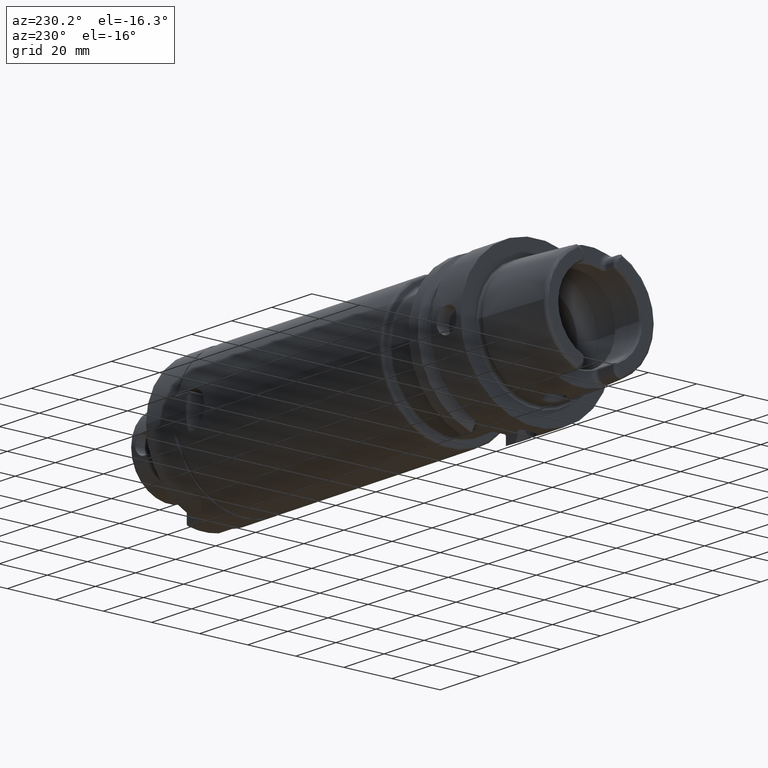
[diagram: clean part render]
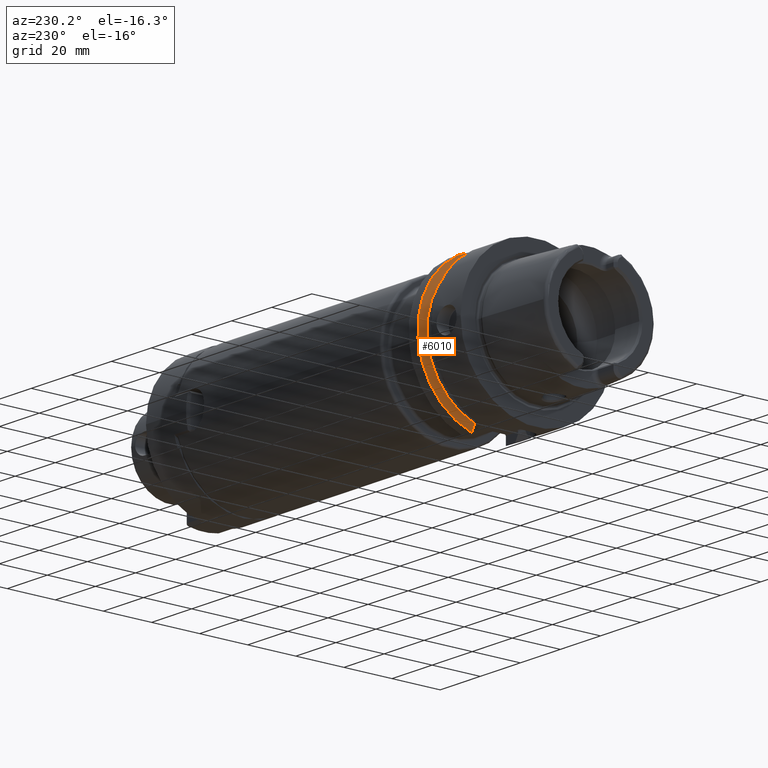
[diagram: same view with one face highlighted and labeled with its STEP entity id]
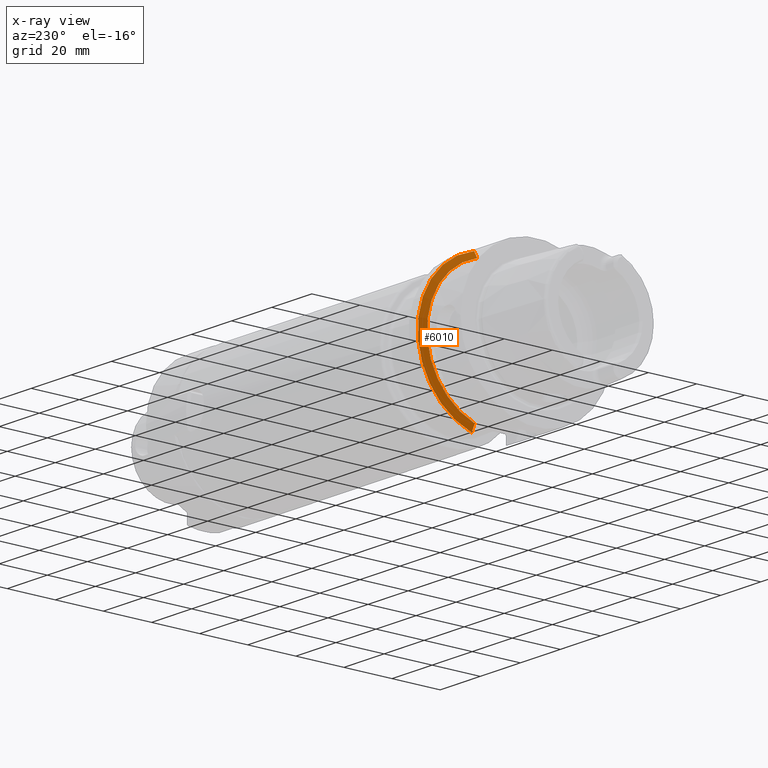
[diagram: x-ray of the same camera — body ghosted, the highlighted face saturated]
A machine part, auxiliary view. The second image highlights one B-rep face of the part: STEP entity #6010.
The next image is the same camera in x-ray: the body ghosted, the highlighted face saturated — about 0% of this face is hidden behind the body in this view.
In plain terms, the highlighted conical surface has half-angle 60 deg.
Its self-contained STEP definition (entity closure, byte-faithful):
#2205=CARTESIAN_POINT('',(2.137749907476E1,9.0175E0,-3.018169467989E1));
#2206=CARTESIAN_POINT('',(2.120260671566E1,9.0175E0,-2.986554088755E1));
#2207=CARTESIAN_POINT('',(2.085812292499E1,9.0175E0,-2.924200119110E1));
#2208=CARTESIAN_POINT('',(2.035750942268E1,9.0175E0,-2.833337204728E1));
#2209=CARTESIAN_POINT('',(2.003409260855E1,9.0175E0,-2.774465116011E1));
#2210=CARTESIAN_POINT('',(1.9875E1,9.0175E0,-2.745461174016E1));
#2212=CARTESIAN_POINT('',(2.137749907476E1,0.E0,0.E0));
#2213=DIRECTION('',(1.E0,0.E0,0.E0));
#2214=DIRECTION('',(0.E0,2.862698412698E-1,-9.581490374568E-1));
#2215=AXIS2_PLACEMENT_3D('',#2212,#2213,#2214);
#2217=CARTESIAN_POINT('',(1.9875E1,8.0175E0,2.776311772483E1));
#2218=CARTESIAN_POINT('',(2.003456921596E1,8.0175E0,2.805079344433E1));
#2219=CARTESIAN_POINT('',(2.035862308375E1,8.0175E0,2.863431787984E1));
#2220=CARTESIAN_POINT('',(2.085926872163E1,8.0175E0,2.953380309393E1));
#2221=CARTESIAN_POINT('',(2.120309833211E1,8.0175E0,3.015023700722E1));
#2222=CARTESIAN_POINT('',(2.137749907476E1,8.0175E0,3.046259499370E1));
#2224=CARTESIAN_POINT('',(1.9875E1,0.E0,0.E0));
#2225=DIRECTION('',(-1.E0,0.E0,0.E0));
#2226=DIRECTION('',(0.E0,2.774452312278E-1,9.607414551631E-1));
#2227=AXIS2_PLACEMENT_3D('',#2224,#2225,#2226);
#3418=CARTESIAN_POINT('',(1.9875E1,8.0175E0,2.776311772483E1));
#3419=VERTEX_POINT('',#3418);
#3421=VERTEX_POINT('',#2222);
#3442=CARTESIAN_POINT('',(1.9875E1,9.0175E0,-2.745461174016E1));
#3444=VERTEX_POINT('',#3442);
#3450=VERTEX_POINT('',#2205);
#5998=CARTESIAN_POINT('',(2.062624953738E1,0.E0,0.E0));
#5999=DIRECTION('',(1.E0,0.E0,0.E0));
#6000=DIRECTION('',(0.E0,-1.E0,0.E0));
#6001=AXIS2_PLACEMENT_3D('',#5998,#5999,#6000);
#6002=CONICAL_SURFACE('',#6001,3.019879763210E1,6.E1);
#6003=ORIENTED_EDGE('',*,*,#5038,.F.);
#6004=ORIENTED_EDGE('',*,*,#5941,.T.);
#6005=ORIENTED_EDGE('',*,*,#5870,.F.);
#6007=ORIENTED_EDGE('',*,*,#6006,.T.);
#6008=EDGE_LOOP('',(#6003,#6004,#6005,#6007));
#6009=FACE_OUTER_BOUND('',#6008,.F.);
#6010=ADVANCED_FACE('',(#6009),#6002,.T.);
#2211=B_SPLINE_CURVE_WITH_KNOTS('',3,(#2205,#2206,#2207,#2208,#2209,#2210),
.UNSPECIFIED.,.F.,.F.,(4,1,1,4),(0.E0,3.333333333333E-1,6.666666666667E-1,1.E0),
.UNSPECIFIED.);
#2216=CIRCLE('',#2215,3.15E1);
#2223=B_SPLINE_CURVE_WITH_KNOTS('',3,(#2217,#2218,#2219,#2220,#2221,#2222),
.UNSPECIFIED.,.F.,.F.,(4,1,1,4),(0.E0,3.333333333333E-1,6.666666666667E-1,1.E0),
.UNSPECIFIED.);
#2228=CIRCLE('',#2227,2.889759526419E1);
#5038=EDGE_CURVE('',#3450,#3444,#2211,.T.);
#5870=EDGE_CURVE('',#3419,#3421,#2223,.T.);
#5941=EDGE_CURVE('',#3450,#3421,#2216,.T.);
#6006=EDGE_CURVE('',#3419,#3444,#2228,.T.);